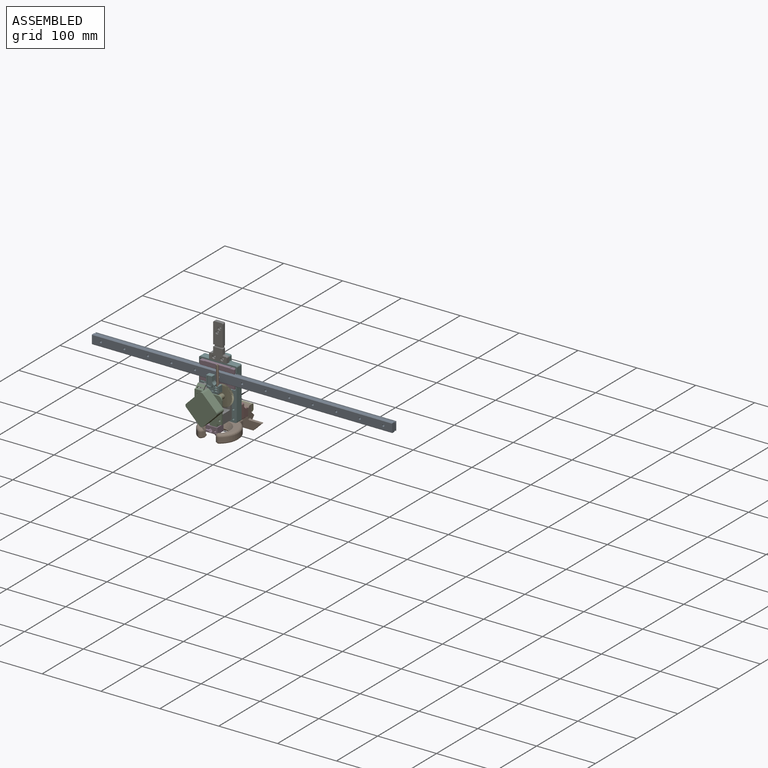
[diagram: assembled view]
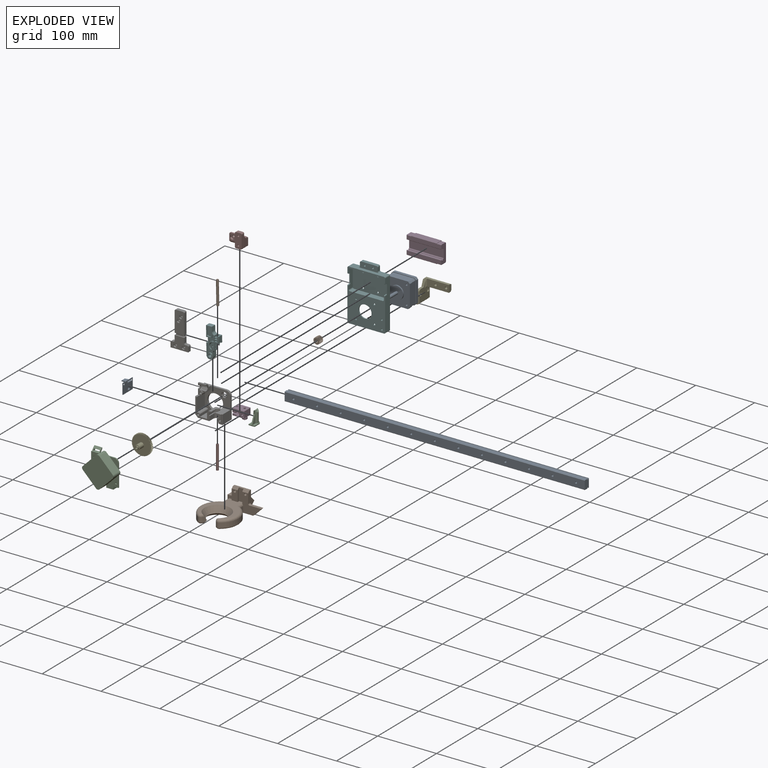
[diagram: exploded view]
GUIDED TOUR — MATED ASSEMBLY (Onshape document 4582f0631d4806b16300ab5d, AutoMate assembly 4582f0631d4806b16300ab5d_21cebfb99f55994230c3e05c_c5b93d2817305b9a1263b165_default)

This assembly has 18 components, labeled P0..P17 below (a component is one placed occurrence of a part; the same part can appear more than once), held together by 17 mates. A mate is a constraint between two components; its type names the relative motion it leaves free:
  FASTENED — locks the two components together rigidly (no relative motion),
  REVOLUTE — leaves rotation about the listed axis free (a hinge),
  SLIDER — leaves translation along the listed axis free.
Axis/direction vectors are unit vectors and 'through' points are millimeter coordinates, both in the assembly's world frame.

MATES
  1. FASTENED "Fastened 7": P14 <-> P10, direction (0.000, -1.000, 0.000) through (-208.50, -170.31, -128.81) mm
  2. FASTENED "Fastened 9": P8 <-> P5, direction (0.000, -1.000, 0.000) through (-189.89, -146.06, -109.85) mm
  3. FASTENED "Fastened 11": P15 <-> P5, direction (0.000, -1.000, 0.000) through (-161.64, -136.06, -114.85) mm
  4. FASTENED "Fastened 12": P15 <-> P17, direction (0.000, 1.000, 0.000) through (-161.39, -119.56, -125.35) mm
  5. FASTENED "Fastened 14": P17 <-> P12, direction (0.000, 1.000, 0.000) through (-161.39, -112.56, -125.35) mm
  6. SLIDER "Slider 1": P0 <-> P3, axis (-1.000, 0.000, 0.000) through (-397.35, -144.56, -67.85) mm
  7. FASTENED "Fastened 10": P5 <-> P14, direction (0.000, -1.000, 0.000) through (-189.89, -148.06, -109.85) mm
  8. FASTENED "Fastened 8": P2 <-> P7, direction (0.000, 0.000, -1.000) through (-178.90, -161.96, -101.64) mm
  9. FASTENED "Fastened 1": P5 <-> P3, direction (0.000, -1.000, 0.000) through (-200.39, -138.06, -55.35) mm
  10. FASTENED "Fastened 15": P12 <-> P16, direction (-1.000, 0.000, 0.000) through (-199.89, -106.26, -139.35) mm
  11. FASTENED "Fastened 5": P9 <-> P13, direction (0.018, 0.000, -1.000) through (-178.91, -161.07, -86.06) mm
  12. FASTENED "Fastened 6": P2 <-> P14, direction (0.000, 0.000, 1.000) through (-178.80, -161.96, -116.34) mm
  13. REVOLUTE "Revolute 1": P10 <-> P11, axis (0.000, 0.000, -1.000) through (-178.85, -161.31, -135.96) mm
  14. FASTENED "Fastened 2": P14 <-> P4, direction (0.000, -1.000, 0.000) through (-174.37, -152.16, -94.51) mm
  15. FASTENED "Fastened 3": P14 <-> P1, direction (0.000, 1.000, 0.000) through (-189.89, -148.06, -109.85) mm
  16. FASTENED "Fastened 13": P5 <-> P6, direction (0.000, -1.000, 0.000) through (-194.89, -142.06, -42.85) mm
  17. FASTENED "Fastened 4": P1 <-> P13, direction (0.000, -1.000, 0.000) through (-189.89, -157.06, -109.85) mm

ASSEMBLY ORDER
  1. P14 — the base component [order heuristic]
  2. P4 — core [order heuristic]
  3. P10 — core [order heuristic]
  4. P7 — core [order heuristic]
  5. P3 [order verified]
  6. P5 [order verified]
  7. P8 [order verified]
  8. P13 [order verified]
  9. P1 [order verified]
  10. P2 [order verified]
  11. P9 [order verified]
  12. P12 [order verified]
  13. P11 [order verified]
  14. P17 [order verified]
  15. P16 [order verified]
  16. P0 [order verified]
  17. P15 [order verified]
  18. P6 [order verified]
(P1, P2, P9, P13 verified with a relaxed clearance tolerance: the source model stores slight part interference there.)
Order-tag legend:
  [order verified] — this step's position reverses a verified removal order: the component was checked to insert without passing through the ones already placed.
  [order heuristic] — the first 4 components form the assembly's core: parts whose collision-free extraction could not be verified, listed in mate-graph order.

Of the 18 components, 1 carries the full construction recipe — the FeatureScript program that regenerates the part's solid from scratch; the rest are supplied as boundary geometry only.
Because this assembly has more than 12 components, the tour below covers the 12 most significant ones individually (every recipe-attached component first, then the largest by part volume), in assembly order; the remaining 6 are summarized together in a grouped section at the end.
Each toured component is shown spotlighted twice — in the assembled view, then in the exploded view, where a leader line traces a displaced component back to its assembled socket (saturated green if recipe-attached, orange if geometry-only; every other component desaturated gray) — followed by its recipe or geometry summary and the mates that hold it.
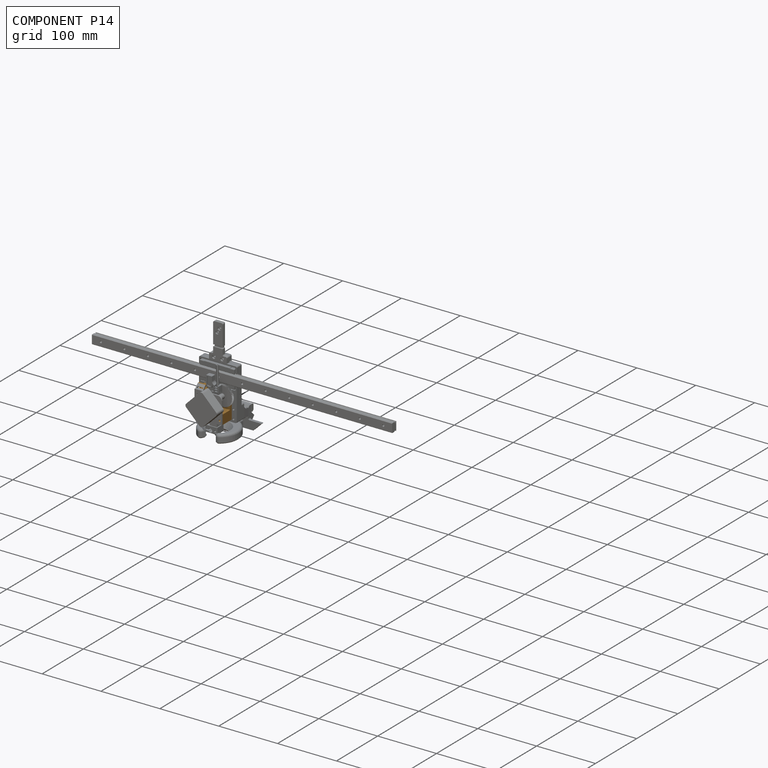
[diagram: component P14 — assembled]
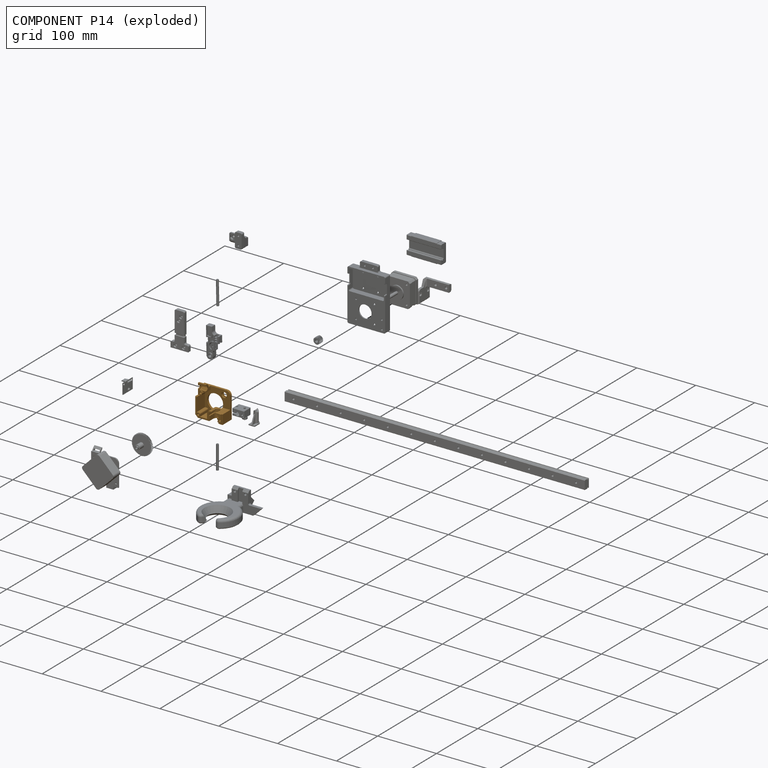
[diagram: component P14 — exploded]
COMPONENT P14 — geometry summary (no construction recipe available for this part):
  bounding box: 50.1 x 46.3 x 23.8 mm
  B-rep topology: 1 solid, 91 faces, 533 edges
  volume: 13798 mm^3 (25% of its bounding box)
Held by: FASTENED mate "Fastened 7" to P10; FASTENED mate "Fastened 10" to P5; FASTENED mate "Fastened 6" to P2; FASTENED mate "Fastened 2" to P4; FASTENED mate "Fastened 3" to P1.
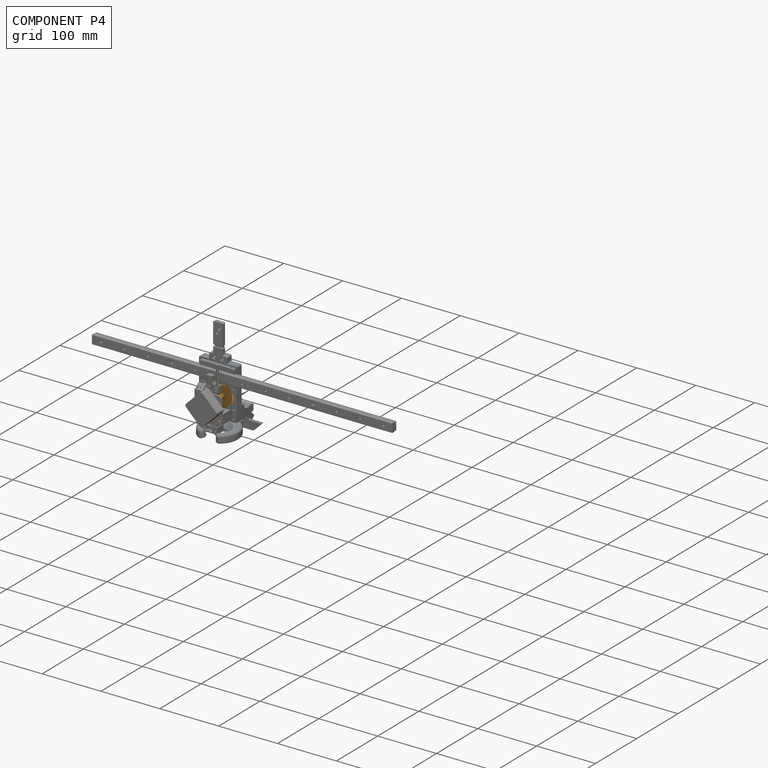
[diagram: component P4 — assembled]
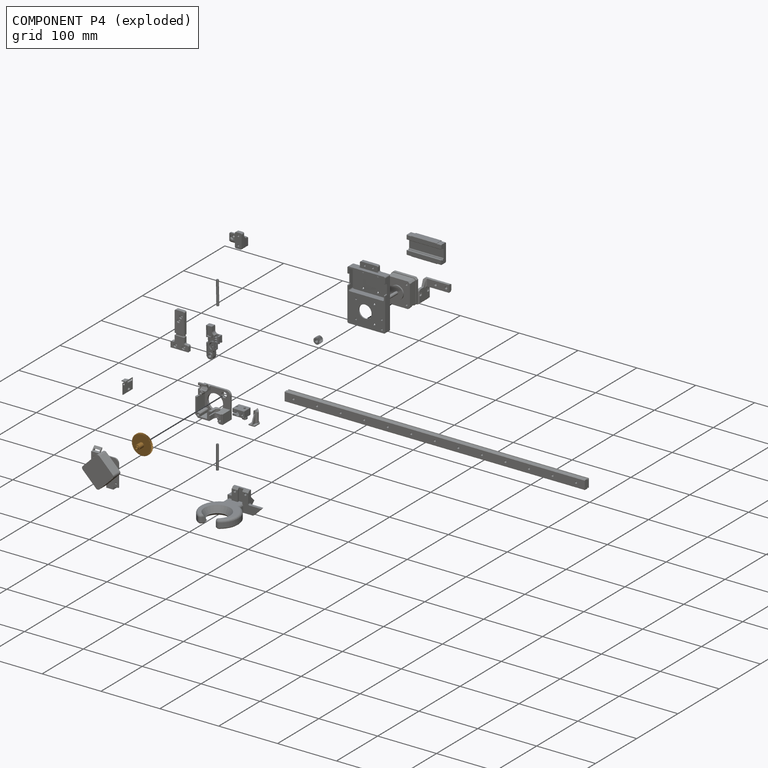
[diagram: component P4 — exploded]
COMPONENT P4 — geometry summary (no construction recipe available for this part):
  bounding box: 34.0 x 34.0 x 20.2 mm
  B-rep topology: 1 solid, 155 faces, 860 edges
  volume: 3832 mm^3 (16% of its bounding box)
  symmetry: 6-fold rotationally symmetric about the y axis
Held by: FASTENED mate "Fastened 2" to P14.
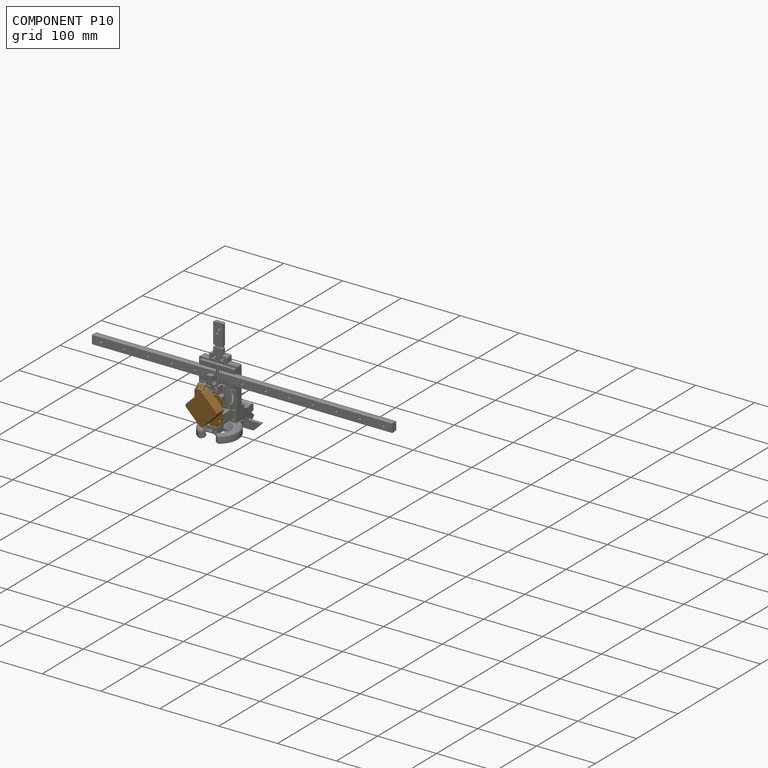
[diagram: component P10 — assembled]
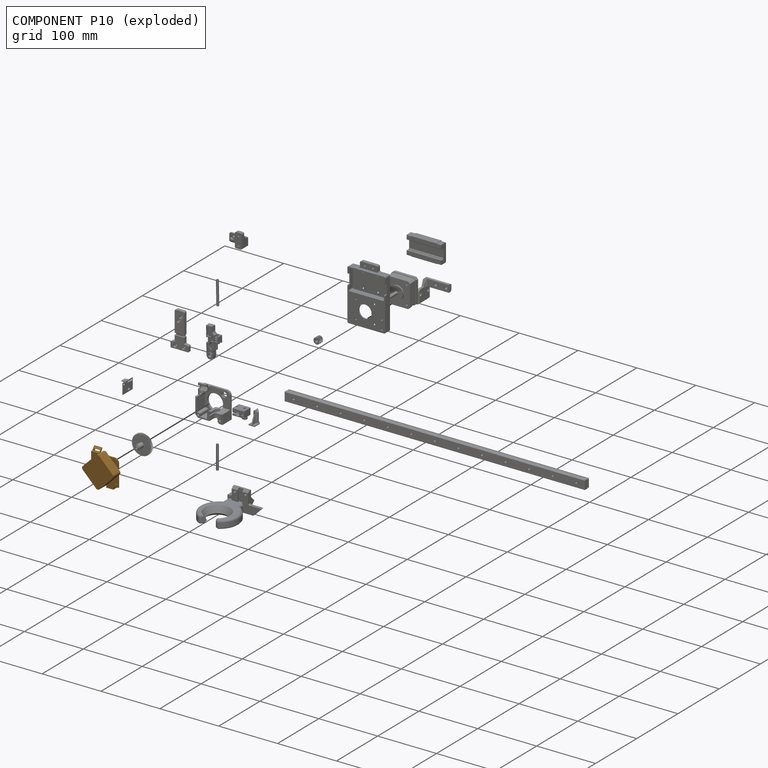
[diagram: component P10 — exploded]
COMPONENT P10 — geometry summary (no construction recipe available for this part):
  bounding box: 55.9 x 53.3 x 34.0 mm
  B-rep topology: 1 solid, 66 faces, 354 edges
  volume: 34390 mm^3 (34% of its bounding box)
Held by: FASTENED mate "Fastened 7" to P14; REVOLUTE mate "Revolute 1" to P11.
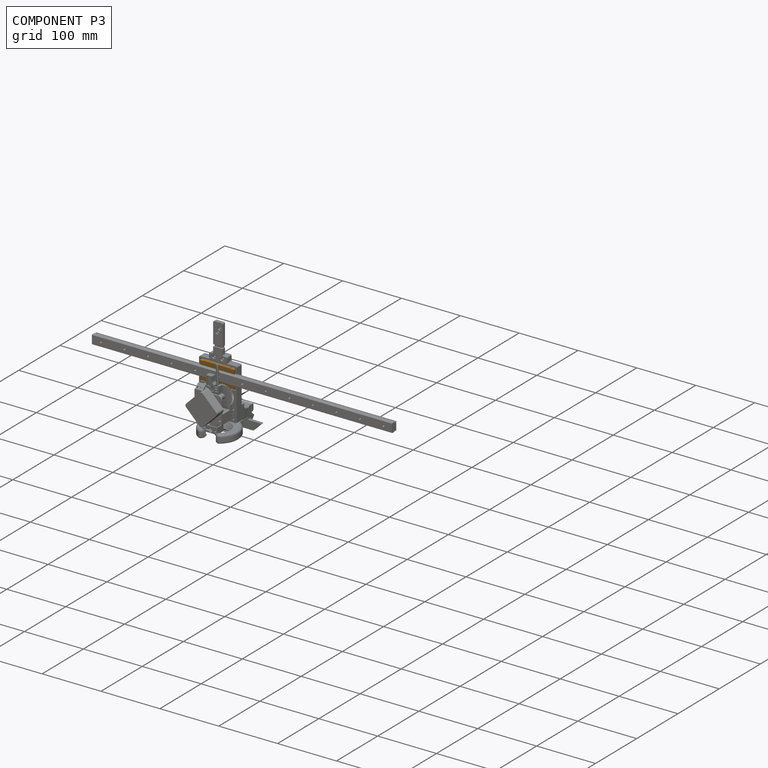
[diagram: component P3 — assembled]
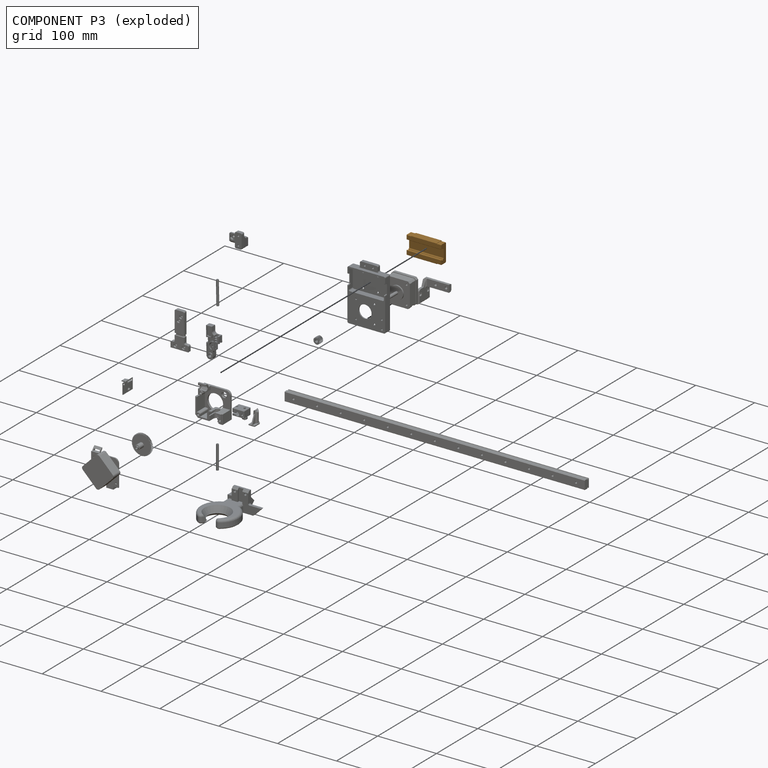
[diagram: component P3 — exploded]
COMPONENT P3 — geometry summary (no construction recipe available for this part):
  bounding box: 58.8 x 32.0 x 12.0 mm
  B-rep topology: 1 solid, 50 faces, 272 edges
  volume: 15748 mm^3 (70% of its bounding box)
  symmetry: 2-fold rotationally symmetric about the z axis; mirror-symmetric across its x mid-plane, y mid-plane
Held by: SLIDER mate "Slider 1" to P0; FASTENED mate "Fastened 1" to P5.
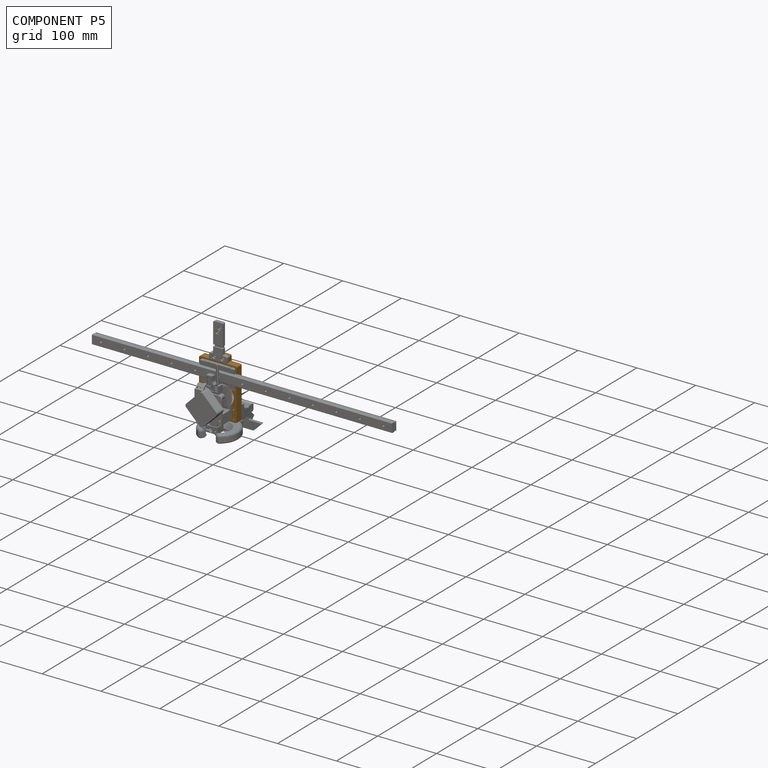
[diagram: component P5 — assembled]
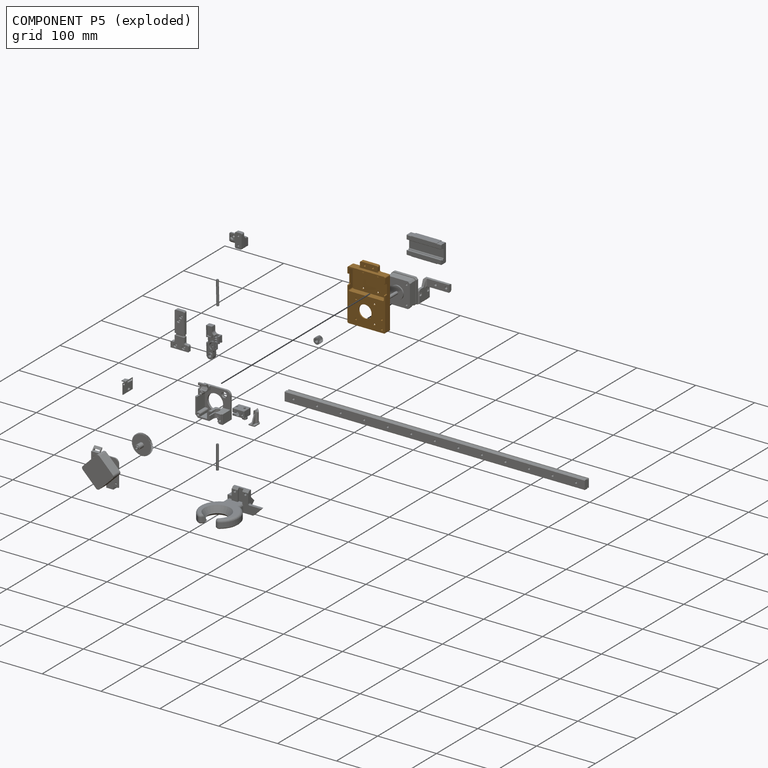
[diagram: component P5 — exploded]
COMPONENT P5 — geometry summary (no construction recipe available for this part):
  bounding box: 97.0 x 64.0 x 12.0 mm
  B-rep topology: 1 solid, 64 faces, 380 edges
  volume: 25953 mm^3 (35% of its bounding box)
Held by: FASTENED mate "Fastened 9" to P8; FASTENED mate "Fastened 11" to P15; FASTENED mate "Fastened 10" to P14; FASTENED mate "Fastened 1" to P3; FASTENED mate "Fastened 13" to P6.
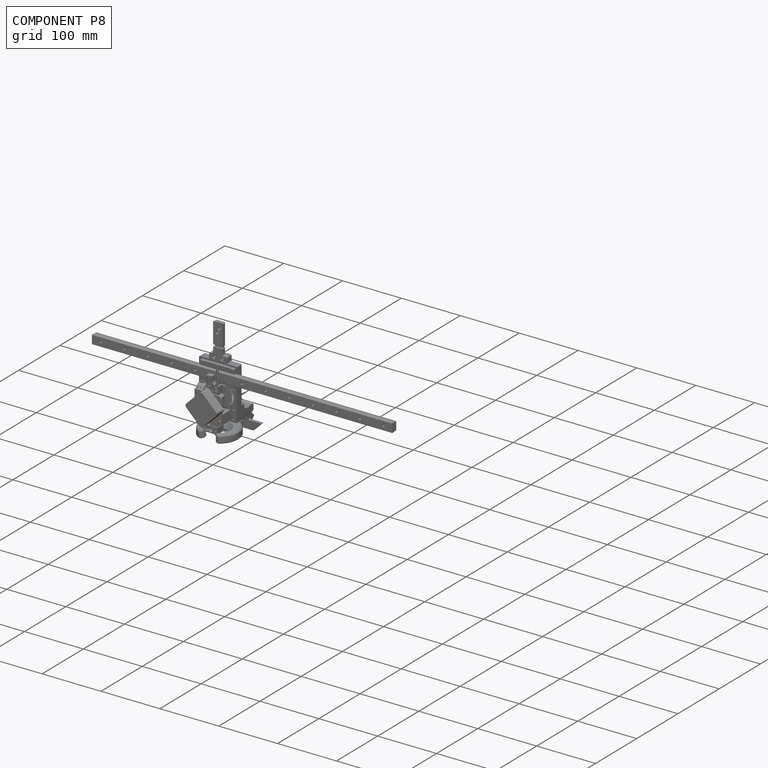
[diagram: component P8 — assembled]
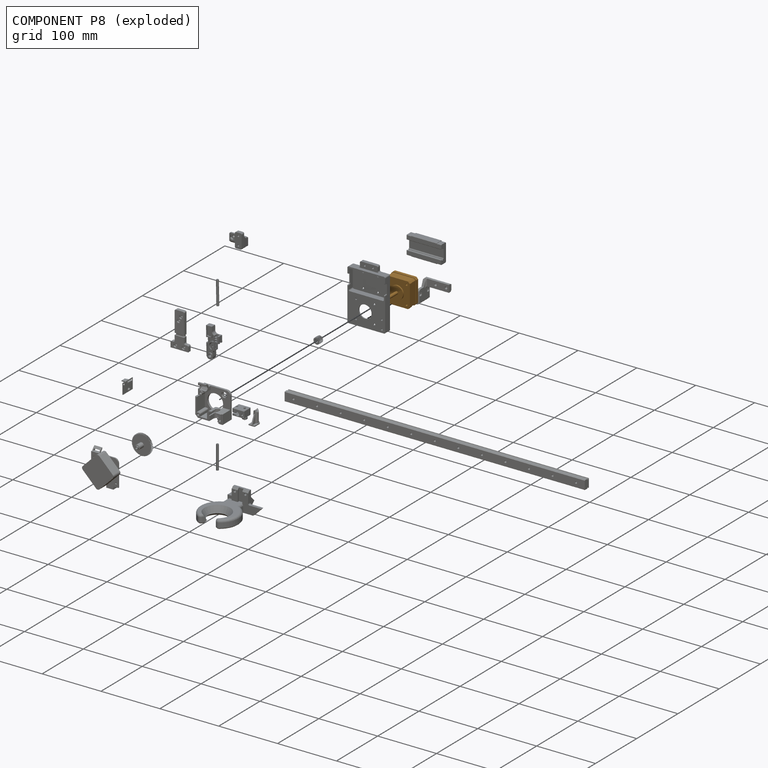
[diagram: component P8 — exploded]
COMPONENT P8 — geometry summary (no construction recipe available for this part):
  bounding box: 44.0 x 42.3 x 42.3 mm
  B-rep topology: 1 solid, 36 faces, 182 edges
  volume: 34464 mm^3 (44% of its bounding box)
  symmetry: 4-fold rotationally symmetric about the y axis; mirror-symmetric across its x mid-plane, z mid-plane
Held by: FASTENED mate "Fastened 9" to P5.
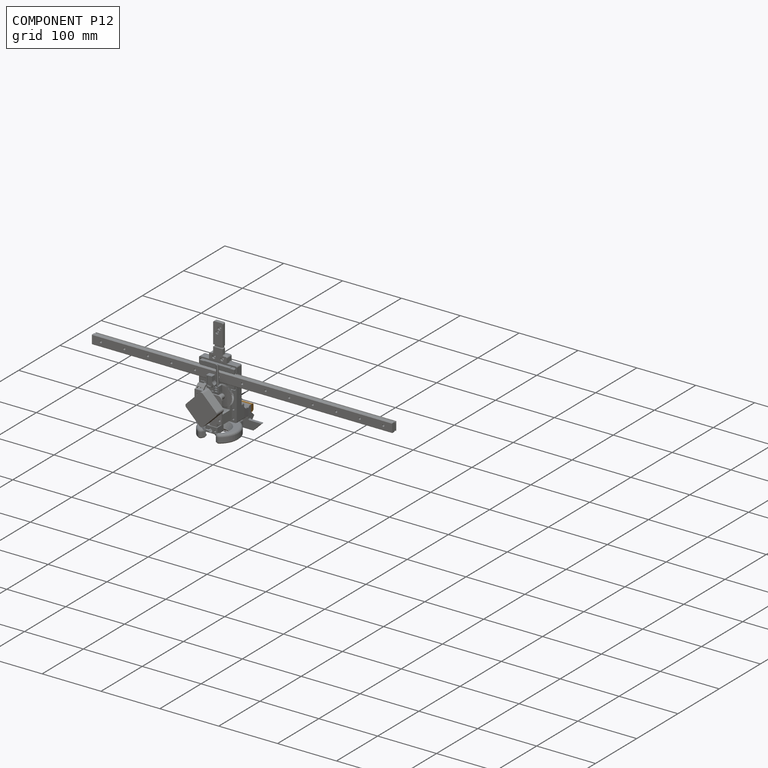
[diagram: component P12 — assembled]
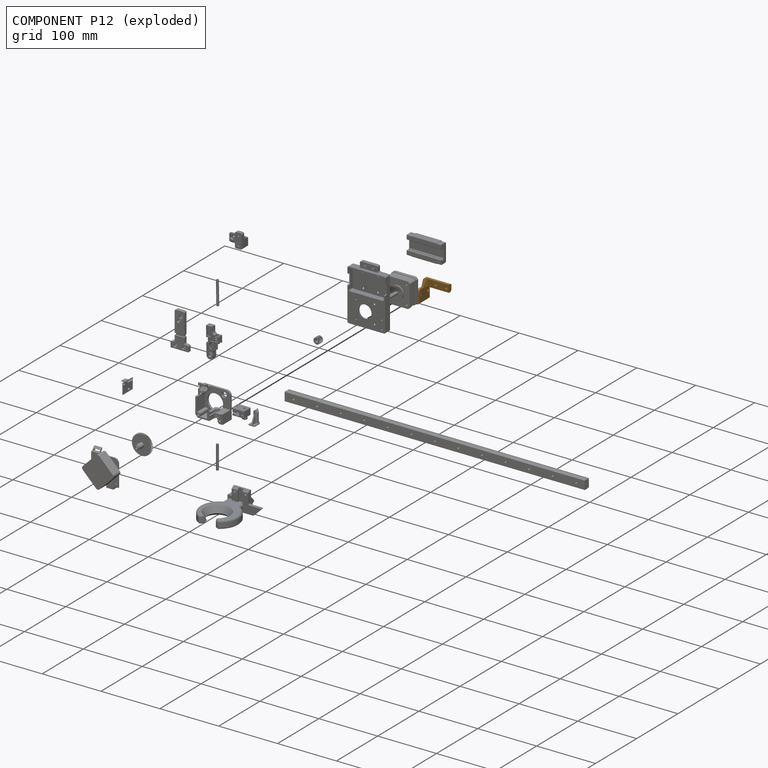
[diagram: component P12 — exploded]
COMPONENT P12 — geometry summary (no construction recipe available for this part):
  bounding box: 45.5 x 35.0 x 26.4 mm
  B-rep topology: 1 solid, 134 faces, 654 edges
  volume: 5341 mm^3 (13% of its bounding box)
Held by: FASTENED mate "Fastened 14" to P17; FASTENED mate "Fastened 15" to P16.
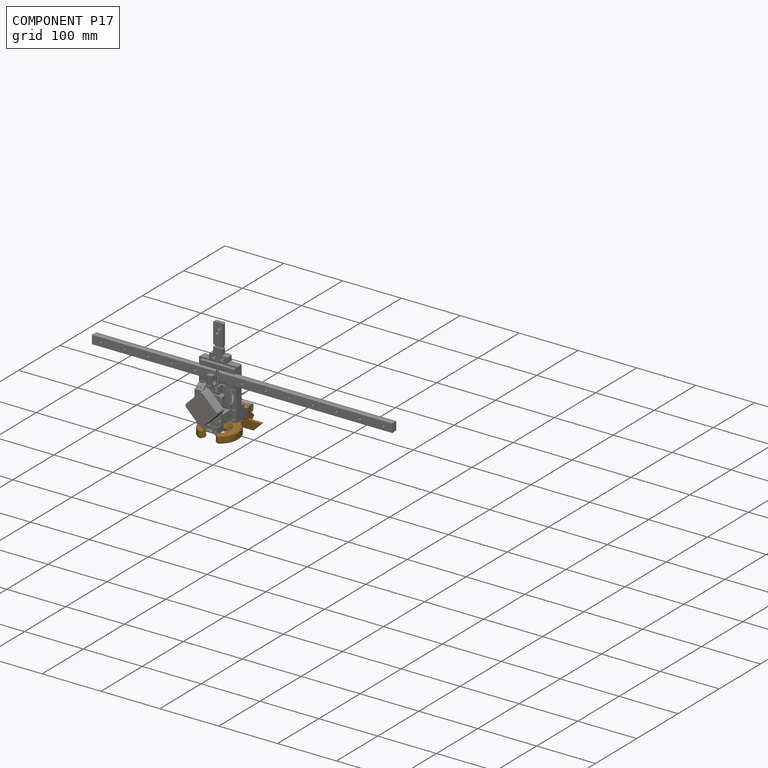
[diagram: component P17 — assembled]
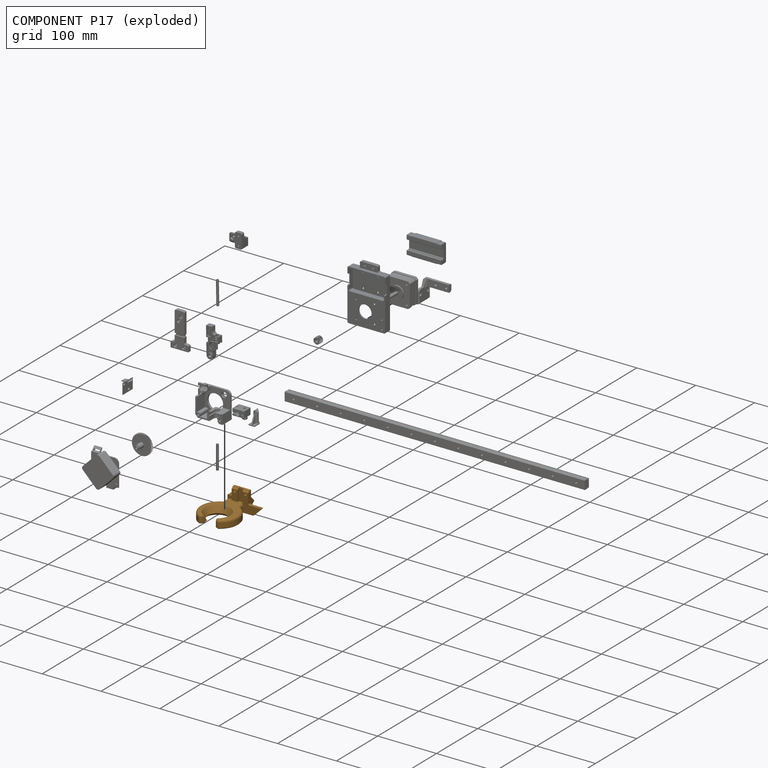
[diagram: component P17 — exploded]
COMPONENT P17 — geometry summary (no construction recipe available for this part):
  bounding box: 92.7 x 80.7 x 35.0 mm
  B-rep topology: 1 solid, 52 faces, 280 edges
  volume: 45562 mm^3 (17% of its bounding box)
Held by: FASTENED mate "Fastened 12" to P15; FASTENED mate "Fastened 14" to P12.
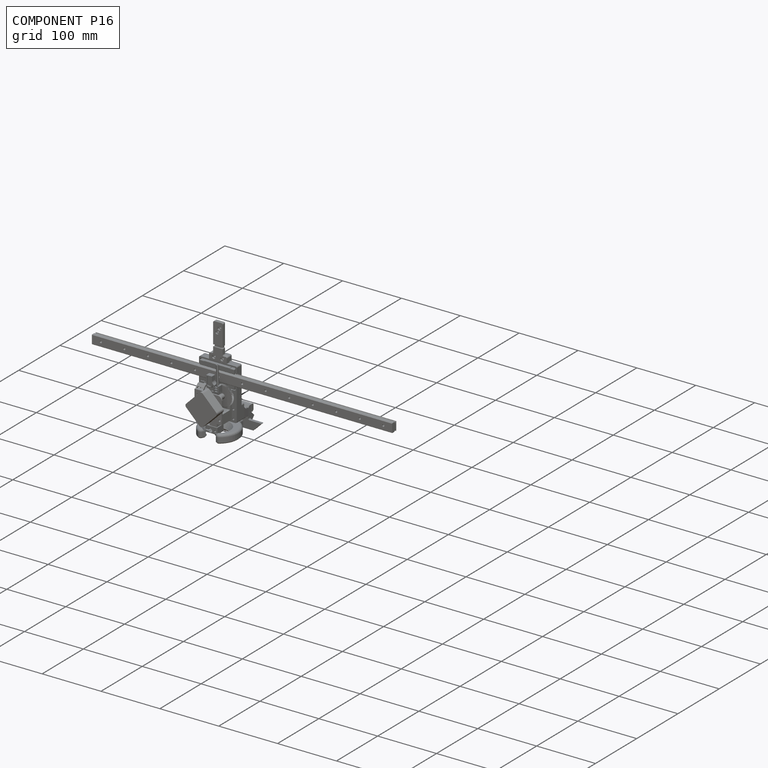
[diagram: component P16 — assembled]
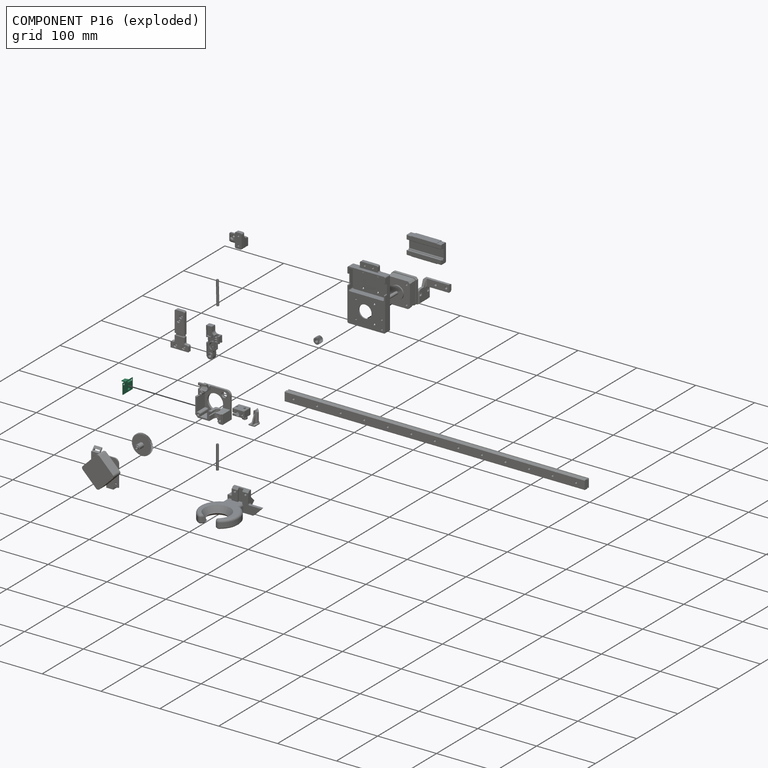
[diagram: component P16 — exploded]
COMPONENT P16 — recipe-attached (CADFS 00556129, mesh-verified: the recipe's output STEP matches this component's geometry to below the mesh-comparison resolution (tessellation chordal tolerance ~0.0484 mm)).
Held by: FASTENED mate "Fastened 15" to P12.
Construction recipe (FeatureScript — the CAD program that rebuilds this solid; sketch coordinates are in the units given by the * unit suffixes, e.g. mm):

FeatureScript 1511;
import(path : "onshape/std/geometry.fs", version : "1511.0");
import(path : "onshape/std/common.fs", version : "1511.0");
const mm = millimeter;
const VERTEX = EntityType.VERTEX;
const EDGE = EntityType.EDGE;
const FACE = EntityType.FACE;
const BODY = EntityType.BODY;
function v(x, y){return vector(x, y);}
function OD(order){return orderDisambiguation(order);}
function OSD(set){return originalSetDisambiguation(set);}
function TD(topology){return topologyDisambiguation(topology);}
function TDD(query){return trueDependencyDisambiguation(query);}
function sQuery(a, b, c) {return sketchEntityQuery(a, b, c);}

annotation { "Feature Type Name" : "Feature", "Feature Type Description" : "" }
export const myFeature = defineFeature(function(context is Context, id is Id, definition is map)
    precondition{}
    {
        {
            var Q0;
            Q0=qCreatedBy(makeId("Front.planeOp"),FACE);
            var sketch = newSketch(context, id + "F0", { "sketchPlane" : qUnion([Q0])});
            skLineSegment(sketch, "E0.bottom", {"start": v(12, 9) * mm, "end": v(-12, 9) * mm});
            skLineSegment(sketch, "E0.top", {"start": v(12, -9) * mm, "end": v(-12, -9) * mm});
            skLineSegment(sketch, "E0.left", {"start": v(12, 9) * mm, "end": v(12, -9) * mm});
            skLineSegment(sketch, "E0.right", {"start": v(-12, 9) * mm, "end": v(-12, -9) * mm});
            skPoint(sketch, "E0.middle", {"position": v(0, 0) * mm});
            skLineSegment(sketch, "E1", {"start": v(-12, 6) * mm, "end": v(12, 6) * mm, "construction": true});
            skPoint(sketch, "E2", {"position": v(-9.3, 6) * mm});
            skPoint(sketch, "E3", {"position": v(9.1, 6) * mm});
            skLineSegment(sketch, "E4.bottom", {"start": v(1.5, 7.5) * mm, "end": v(-6.5, 7.5) * mm});
            skLineSegment(sketch, "E4.top", {"start": v(1.5, 4.5) * mm, "end": v(-6.5, 4.5) * mm});
            skLineSegment(sketch, "E4.left", {"start": v(1.5, 7.5) * mm, "end": v(1.5, 4.5) * mm});
            skLineSegment(sketch, "E4.right", {"start": v(-6.5, 7.5) * mm, "end": v(-6.5, 4.5) * mm});
            skPoint(sketch, "E4.middle", {"position": v(-2.5, 6) * mm});
            skCircle(sketch, "E5", {"center": v(-2, -6) * mm, "radius": 2.5 * mm});
            skSolve(sketch);
        }
        {
            var Q0;
            Q0=makeQuery(id+"F0.imprint","IMPRINT",FACE,{"disambiguationData":[TD([[makeQuery(id+"F0.imprint","IMPRINT",EDGE,{"derivedFrom":sQuery(id+"F0.wireOp",EDGE,"E0.bottom")}),1.0]])]});
            var Q1;
            Q1=makeQuery(id+"F0.imprint","IMPRINT",FACE,{"disambiguationData":[TD([[makeQuery(id+"F0.imprint","IMPRINT",EDGE,{"derivedFrom":sQuery(id+"F0.wireOp",EDGE,"E4.bottom")}),1.0]])]});
            var Q2;
            Q2=makeQuery(id+"F0.imprint","IMPRINT",FACE,{"disambiguationData":[TD([[makeQuery(id+"F0.imprint","IMPRINT",EDGE,{"derivedFrom":sQuery(id+"F0.wireOp",EDGE,"E5")}),1.0]])]});
            extrude(context, id + "F1", {"entities" : qUnion([Q0, Q1, Q2]), "depth" : 0.8 * mm, "offsetDistance" : 25 * mm});
        }
        {
            var Q0;
            Q0=sQuery(id+"F0.wireOp",VERTEX,"E2");
            var Q1;
            Q1=sQuery(id+"F0.wireOp",VERTEX,"E3");
            var Q2;
            Q2=makeQuery(id+"F1.opExtrude","SWEPT_BODY",BODY,{"disambiguationData":[OSD([sQuery(id+"F0.wireOp",EDGE,"E0.bottom"),sQuery(id+"F0.wireOp",EDGE,"E0.top"),sQuery(id+"F0.wireOp",EDGE,"E0.left"),sQuery(id+"F0.wireOp",EDGE,"E0.right")])]});
            hole(context, id + "F2", {"style" : HoleStyle.SIMPLE, "endStyle" : HoleEndStyle.THROUGH, "oppositeDirection" : true, "holeDiameter" : 2.8 * mm, "majorDiameter" : 5 * mm, "isTappedThrough" : true, "tappedDepth" : 12 * mm, "tapClearance" : 3, "locations" : qUnion([Q0, Q1]), "scope" : qUnion([Q2])});
        }
        {
            var Q0;
            Q0=makeQuery(id+"F0.imprint","IMPRINT",FACE,{"disambiguationData":[TD([[makeQuery(id+"F0.imprint","IMPRINT",EDGE,{"derivedFrom":sQuery(id+"F0.wireOp",EDGE,"E4.bottom")}),1.0]])]});
            var Q1;
            Q1=makeQuery(id+"F0.imprint","IMPRINT",FACE,{"disambiguationData":[TD([[makeQuery(id+"F0.imprint","IMPRINT",EDGE,{"derivedFrom":sQuery(id+"F0.wireOp",EDGE,"E5")}),1.0]])]});
            extrude(context, id + "F3", {"entities" : qUnion([Q0, Q1]), "operationType" : NewBodyOperationType.ADD, "oppositeDirection" : true, "depth" : 2 * mm, "offsetDistance" : 25 * mm});
        }
        {
            var Q0;
            Q0=makeQuery(id+"F3.opExtrude","CAP_EDGE",EDGE,{"disambiguationData":[OSD([sQuery(id+"F0.wireOp",EDGE,"E4.top")])],"isStart":false});
            var Q1;
            Q1=makeQuery(id+"F3.opExtrude","CAP_EDGE",EDGE,{"disambiguationData":[OSD([sQuery(id+"F0.wireOp",EDGE,"E4.bottom")])],"isStart":false});
            chamfer(context, id + "F4", {"entities" : qUnion([Q0, Q1]), "chamferType" : ChamferType.TWO_OFFSETS, "width1" : 1 * mm, "oppositeDirection" : false, "width2" : 2 * mm, "tangentPropagation" : true});
        }
        {
            var Q0;
            Q0=makeQuery(id+"F3.opExtrude","CAP_EDGE",EDGE,{"disambiguationData":[OSD([sQuery(id+"F0.wireOp",EDGE,"E5")])],"isStart":false});
            chamfer(context, id + "F5", {"entities" : qUnion([Q0]), "chamferType" : ChamferType.TWO_OFFSETS, "width1" : 2 * mm, "oppositeDirection" : false, "width2" : 1 * mm, "tangentPropagation" : true});
        }
        {
            var Q0;
            Q0=makeQuery(id+"F0.imprint","IMPRINT",FACE,{"disambiguationData":[TD([[makeQuery(id+"F0.imprint","IMPRINT",EDGE,{"derivedFrom":sQuery(id+"F0.wireOp",EDGE,"E5")}),1.0]])]});
            extrude(context, id + "F6", {"entities" : qUnion([Q0]), "operationType" : NewBodyOperationType.ADD, "depth" : (6 + 0.8) * mm, "offsetDistance" : 25 * mm});
        }
        {
            var Q0;
            Q0=makeQuery(id+"F0.imprint","IMPRINT",FACE,{"disambiguationData":[TD([[makeQuery(id+"F0.imprint","IMPRINT",EDGE,{"derivedFrom":sQuery(id+"F0.wireOp",EDGE,"E4.bottom")}),1.0]])]});
            extrude(context, id + "F7", {"entities" : qUnion([Q0]), "operationType" : NewBodyOperationType.ADD, "depth" : (9 + 0.8) * mm, "offsetDistance" : 25 * mm});
        }
        {
            var Q0;
            Q0=makeQuery(id+"F7.opExtrude","CAP_EDGE",EDGE,{"disambiguationData":[OSD([sQuery(id+"F0.wireOp",EDGE,"E4.bottom")])],"isStart":false});
            var Q1;
            Q1=makeQuery(id+"F7.opExtrude","CAP_EDGE",EDGE,{"disambiguationData":[OSD([sQuery(id+"F0.wireOp",EDGE,"E4.top")])],"isStart":false});
            chamfer(context, id + "F8", {"entities" : qUnion([Q0, Q1]), "chamferType" : ChamferType.TWO_OFFSETS, "width1" : 1 * mm, "oppositeDirection" : false, "width2" : 9 * mm, "tangentPropagation" : true});
        }
    });
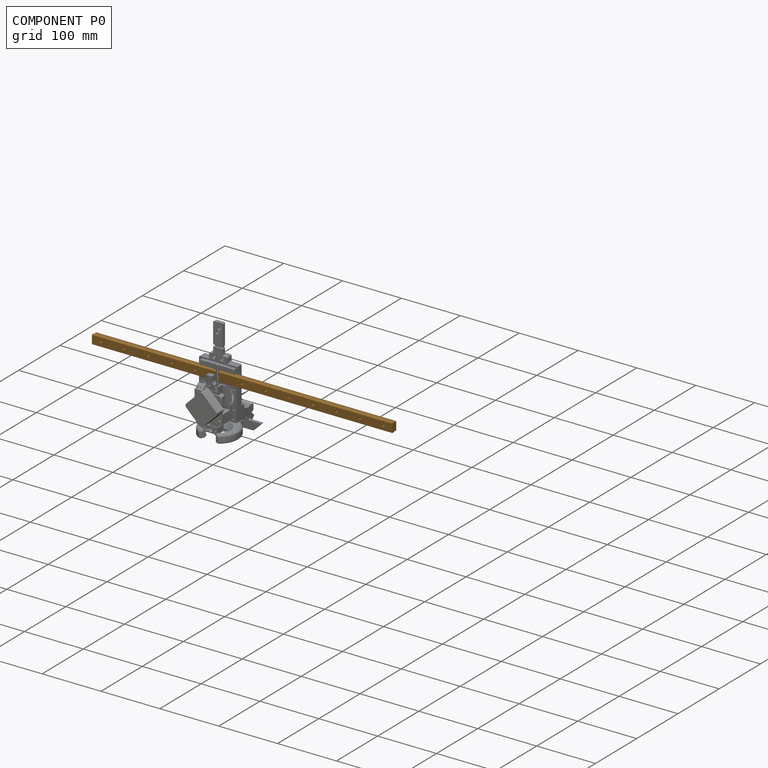
[diagram: component P0 — assembled]
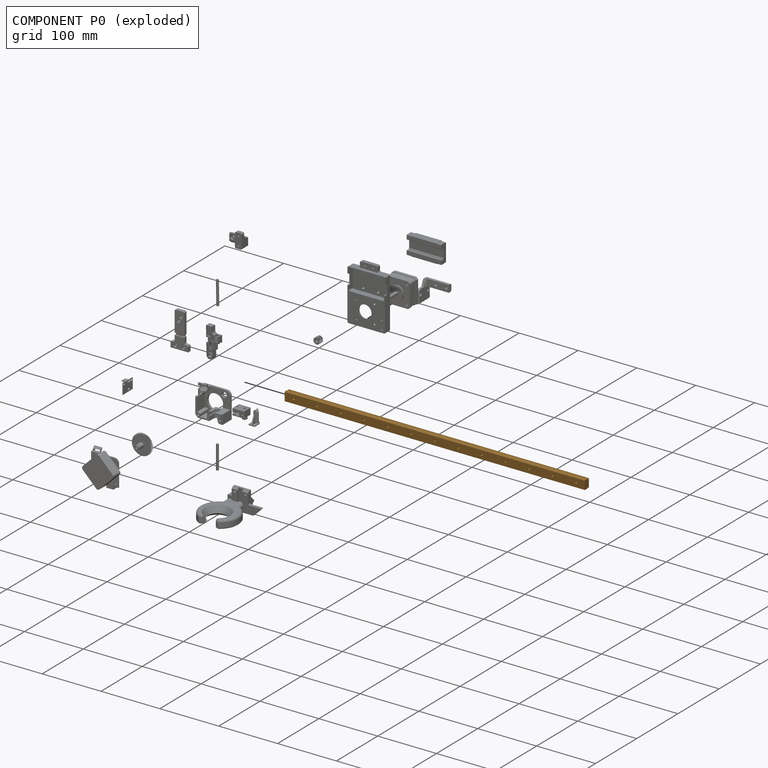
[diagram: component P0 — exploded]
COMPONENT P0 — geometry summary (no construction recipe available for this part):
  bounding box: 510.0 x 15.0 x 10.0 mm
  B-rep topology: 1 solid, 61 faces, 302 edges
  volume: 70177 mm^3 (92% of its bounding box)
  symmetry: 2-fold rotationally symmetric about the x axis; 2-fold rotationally symmetric about the y axis; 2-fold rotationally symmetric about the z axis; mirror-symmetric across its x mid-plane, y mid-plane, z mid-plane
Held by: SLIDER mate "Slider 1" to P3.
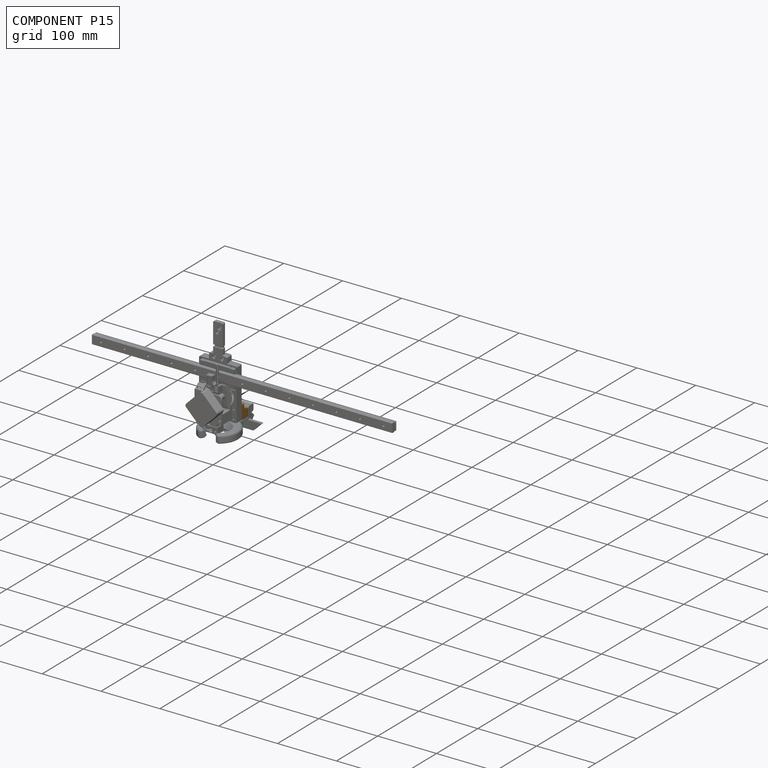
[diagram: component P15 — assembled]
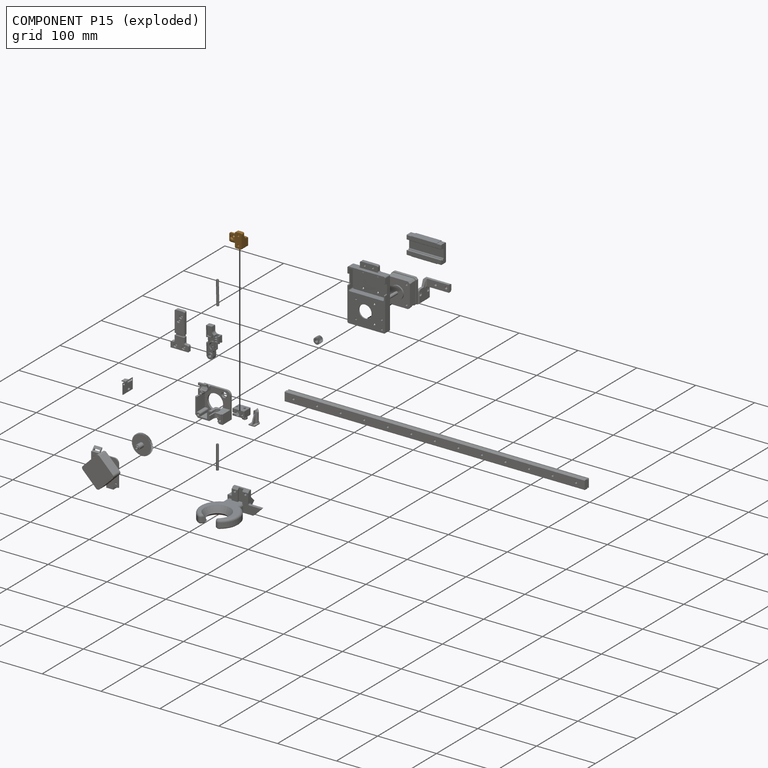
[diagram: component P15 — exploded]
COMPONENT P15 — geometry summary (no construction recipe available for this part):
  bounding box: 28.5 x 25.8 x 16.5 mm
  B-rep topology: 1 solid, 65 faces, 360 edges
  volume: 3862 mm^3 (32% of its bounding box)
Held by: FASTENED mate "Fastened 11" to P5; FASTENED mate "Fastened 12" to P17.
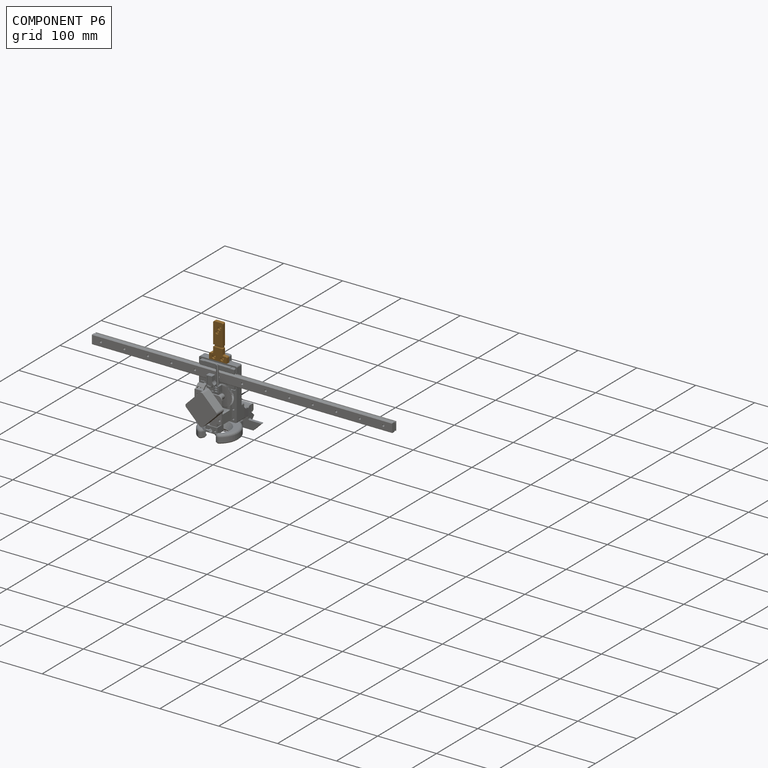
[diagram: component P6 — assembled]
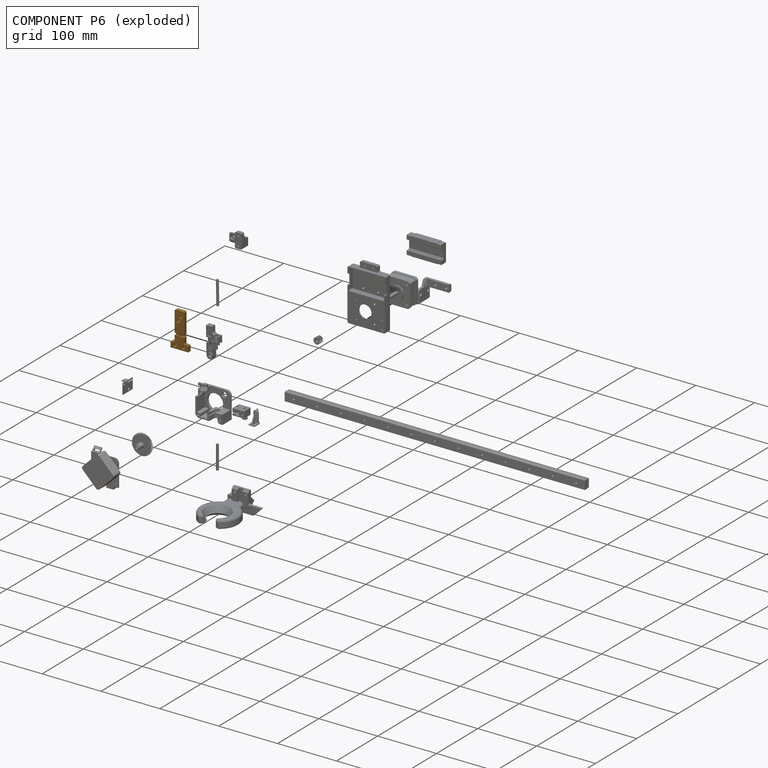
[diagram: component P6 — exploded]
COMPONENT P6 — geometry summary (no construction recipe available for this part):
  bounding box: 60.0 x 30.0 x 6.1 mm
  B-rep topology: 1 solid, 86 faces, 416 edges
  volume: 6090 mm^3 (56% of its bounding box)
Held by: FASTENED mate "Fastened 13" to P5.
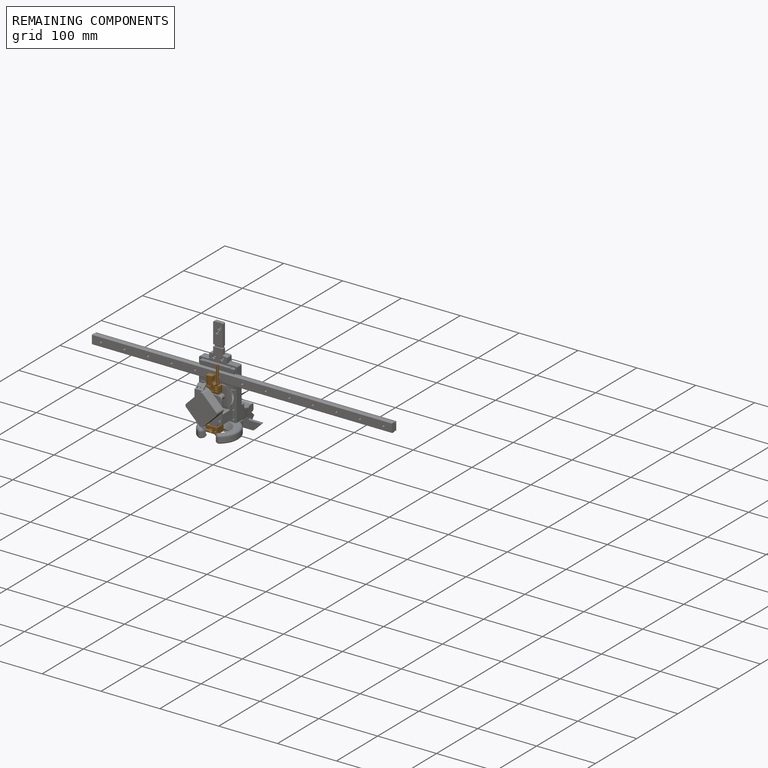
[diagram: remaining components — assembled]
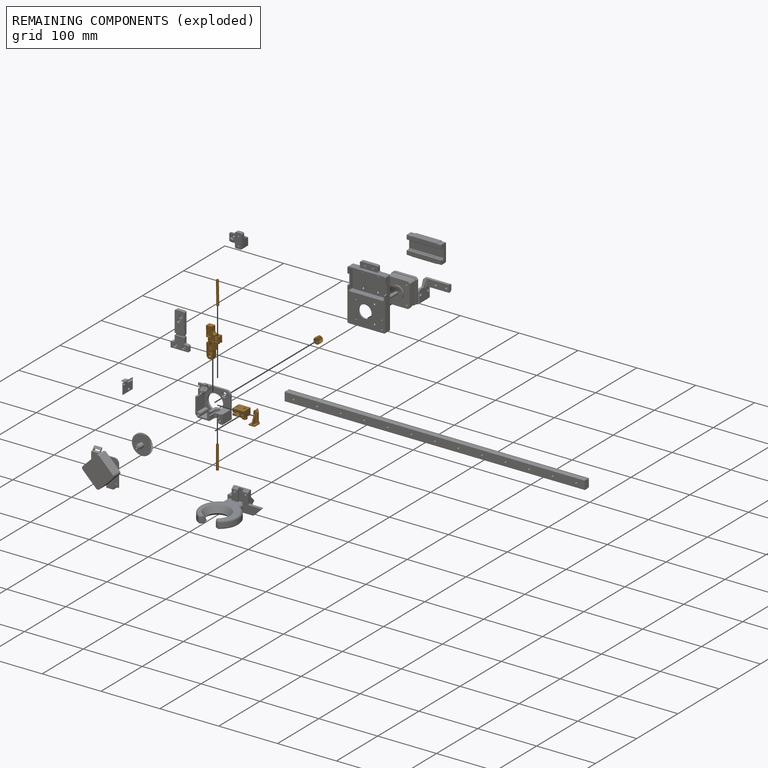
[diagram: remaining components — exploded]
REMAINING COMPONENTS (grouped) — the 6 components below fall outside the per-component tour by the significance rule stated above; both spotlight views highlight the whole group.
  P7: bounding box 40.0 x 4.0 x 4.0 mm, volume 351 mm^3. Held by: FASTENED mate "Fastened 8" to P2.
  P13: bounding box 51.1 x 22.1 x 8.2 mm, volume 3615 mm^3. Held by: FASTENED mate "Fastened 5" to P9; FASTENED mate "Fastened 4" to P1.
  P1: bounding box 11.1 x 11.0 x 9.0 mm, volume 523 mm^3. Held by: FASTENED mate "Fastened 3" to P14; FASTENED mate "Fastened 4" to P13.
  P2: bounding box 21.9 x 16.1 x 10.6 mm, volume 843 mm^3. Held by: FASTENED mate "Fastened 8" to P7; FASTENED mate "Fastened 6" to P14.
  P9: bounding box 40.1 x 4.7 x 4.0 mm, volume 351 mm^3. Held by: FASTENED mate "Fastened 5" to P13.
  P11: bounding box 20.0 x 19.6 x 16.0 mm, volume 3088 mm^3. Held by: REVOLUTE mate "Revolute 1" to P10.
PROVENANCE & LICENSES
Assembly (occurrences, transforms, mates, per-part STEP geometry): AutoMate dataset, Zenodo record 7776208, CC0.
Construction recipes: CADFS (HuggingFace VladPyatov/CADFS, CC-BY-4.0, layered over the ABC dataset), FeatureScript reconstruction programs keyed by ABC model id.
Join: ABC meta listings map ABC model id -> Onshape documentId; within a shared document, parts are matched by geometric signature (bounding-box dims + volume at 0.1% relative tolerance, exact B-rep face/solid counts).
Verification: 1 of this assembly's 18 components carries a recipe attachment, and every attachment is mesh-verified: the CADFS STEP and the AutoMate member STEP were compared as meshes in their shared local frame (symmetric sampled-point-to-mesh distance); worst across the 1 attachment: below the mesh-comparison resolution (tessellation chordal tolerance ~0.0484 mm) on a 32 mm part.
Renders: orthographic iso camera (az 35 / el 25); the floor grid conveys scale (grid pitch printed in each image; no ruler). In the exploded view each component is displaced by its stored offset vector: the offsets alone carry the explosion direction (mate normal/axis signs are not orientation cues and do not encode it), and separation distances are assigned per mate-chain, not proportionally to assembly-order depth.
